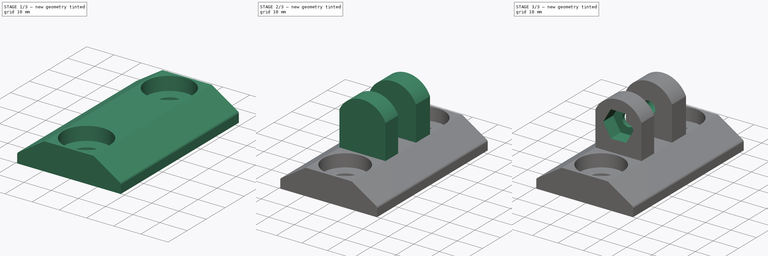
[diagram: build sequence overview — one tinted view per stage of 3, left to right]
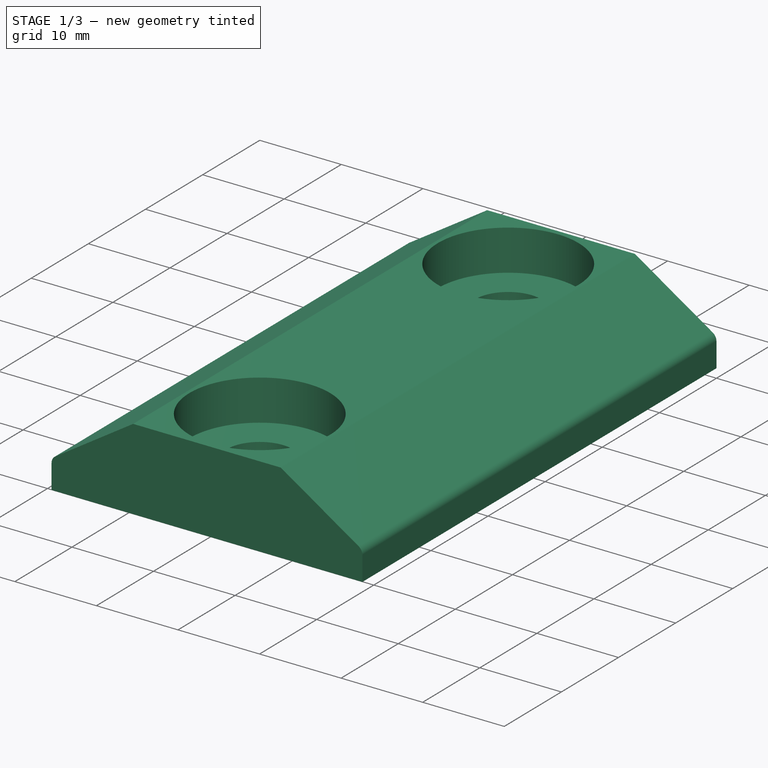
[diagram: stage 1 of 3 — iso view after this stage's code; geometry added in this stage tinted green]
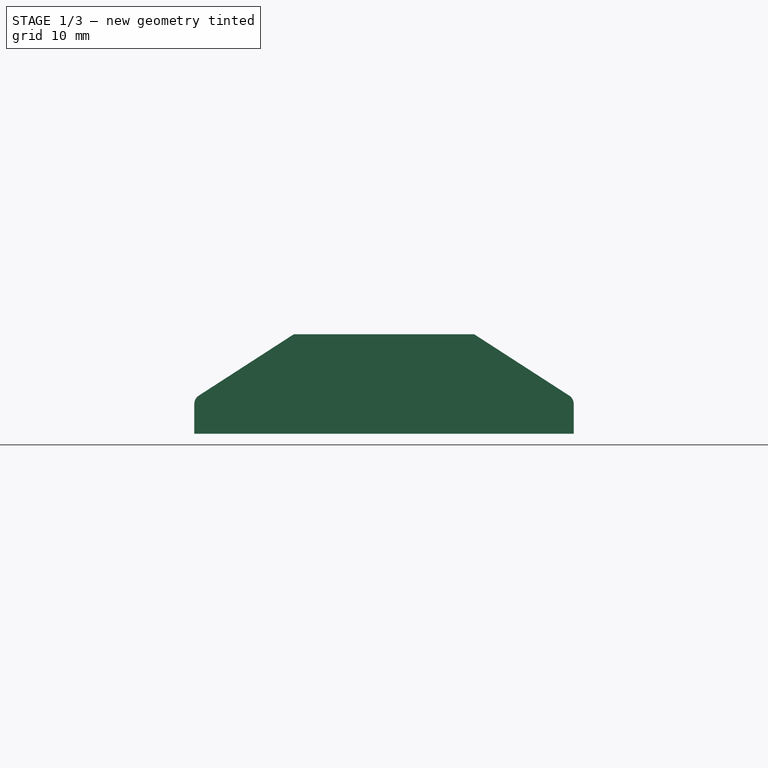
[diagram: stage 1 of 3 — front view after this stage's code; geometry added in this stage tinted green]
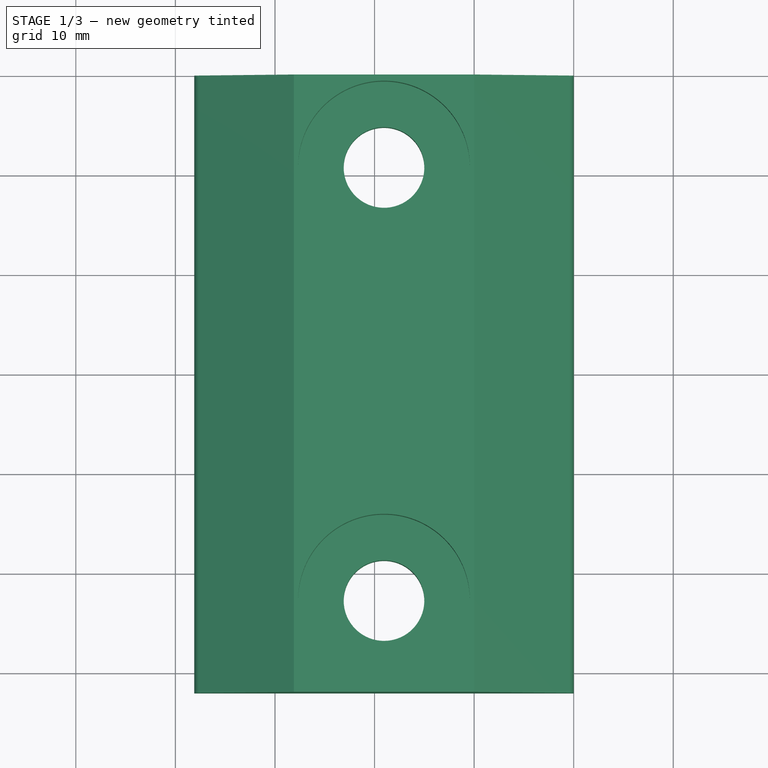
[diagram: stage 1 of 3 — top view after this stage's code; geometry added in this stage tinted green]
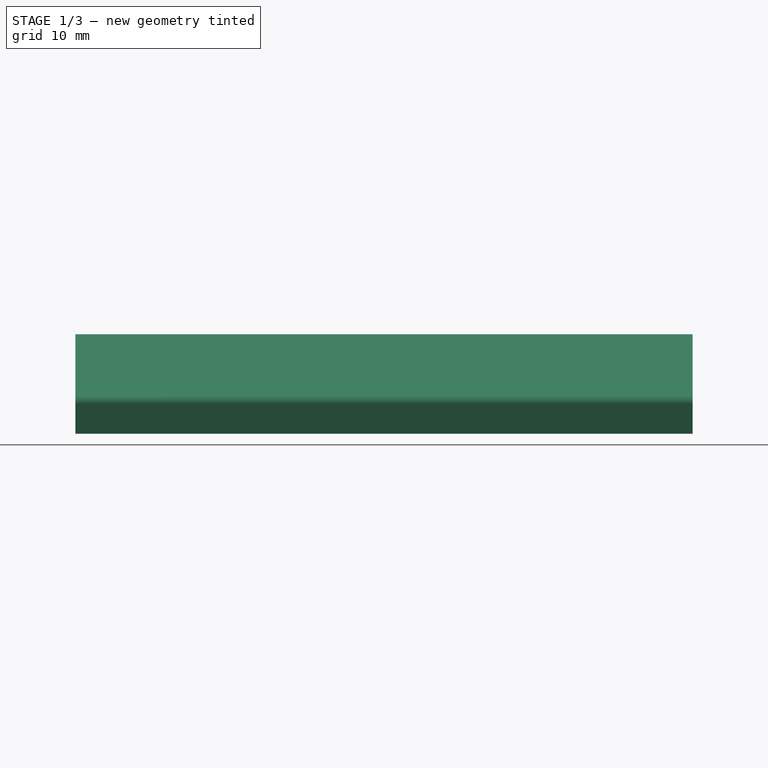
[diagram: stage 1 of 3 — right view after this stage's code; geometry added in this stage tinted green]
FCSTD DOCUMENT  (FreeCAD 0.18R)
Label: y-idler-mount
License: All rights reserved
LicenseURL: http://en.wikipedia.org/wiki/All_rights_reserved
objects: Sketcher::SketchObject×6, PartDesign::Pocket×4, PartDesign::Pad×2, PartDesign::SubtractiveBox×1, PartDesign::SubtractiveCylinder×1, PartDesign::Body×1
note: 23 computed .brp shape members not serialized (recipe doc carries the construction recipe); baked Part::Feature solids carry a one-line shape summary decoded from their .brp

FEATURE [Sketcher::SketchObject] Sketch002  label="Sketch"
  MapMode = 2
  Placement = pos=(0,0,0) rot=(1,0,0;1.5708rad)
  Support = -> [Sketch002]
  sketch-geometry (8):
    g0: LineSegment StartX=-38.1 StartY=3 StartZ=0 EndX=-38.1 EndY=0 EndZ=0
    g1: LineSegment StartX=-28.1 StartY=10 StartZ=0 EndX=-10 EndY=10 EndZ=0
    g2: LineSegment StartX=0 StartY=3 StartZ=0 EndX=0 EndY=0 EndZ=0
    g3: LineSegment StartX=-10 StartY=10 StartZ=0 EndX=-0.457656 EndY=3.84016 EndZ=0
    g4: ArcOfCircle CenterX=-1 CenterY=3 CenterZ=0 NormalX=0 NormalY=0 NormalZ=1 AngleXU=0 Radius=1 StartAngle=0 EndAngle=0.997572
    g5: LineSegment StartX=-38.1 StartY=0 StartZ=0 EndX=0 EndY=0 EndZ=0
    g6: LineSegment StartX=-28.1 StartY=10 StartZ=0 EndX=-37.6423 EndY=3.84016 EndZ=0
    g7: ArcOfCircle CenterX=-37.1 CenterY=3 CenterZ=0 NormalX=0 NormalY=0 NormalZ=1 AngleXU=0 Radius=1 StartAngle=2.14402 EndAngle=3.14159
  constraints (22):
    c: DistanceX(g0,g-1) = 38.1
    c: Vertical(g0)
    c: Horizontal(g1)
    c: DistanceY(g0,g1) = 10
    c: Vertical(g2)
    c: Tangent(g3,g4) = 1.5708
    c: Tangent(g2,g4) = 1.5708
    c: Horizontal(g5)
    c: Coincident(g5,g2)
    c: DistanceY(g2,g-1) = 0
    c: Coincident(g0,g5)
    c: DistanceX(g2,g-1) = 0
    c: Coincident(g3,g1)
    c: DistanceX(g1,g2) = 10
    c: DistanceY(g2,g2) = 3
    c: DistanceX(g4,g2) = 1
    c: Coincident(g6,g1)
    c: Tangent(g6,g7) = -1.5708
    c: Tangent(g0,g7) = -1.5708
    c: DistanceY(g4,g7) = 0
    c: DistanceY(g3,g6) = 0
    c: DistanceX(g0,g1) = 10
FEATURE [PartDesign::Pad] Pad
  Length = 62
  Length2 = 100
  Placement = pos=(0,0,0) rot=(1,0,0;1.5708rad)
  Profile = -> Sketch002
  Type = 0
FEATURE [Sketcher::SketchObject] Sketch003
  MapMode = 5
  Support = -> [XY_Plane002]
  sketch-geometry (2):
    g0: Circle CenterX=-19.05 CenterY=-9.25 CenterZ=0 NormalX=0 NormalY=0 NormalZ=1 AngleXU=0 Radius=4.05
    g1: Circle CenterX=-19.05 CenterY=-52.75 CenterZ=0 NormalX=0 NormalY=0 NormalZ=1 AngleXU=0 Radius=4.05
  constraints (6):
    c: Radius(g0) = 4.05
    c: DistanceX(g0,g-1) = 19.05
    c: DistanceY(g0,g-1) = 9.25
    c: Equal(g1,g0)
    c: DistanceX(g0,g1) = 0
    c: DistanceY(g1,g0) = 43.5
FEATURE [PartDesign::Pocket] Pocket
  BaseFeature = -> Pad
  Length = 10
  Length2 = 100
  Midplane = true
  Placement = pos=(0,0,0) rot=(1,0,0;1.5708rad)
  Profile = -> Sketch003
  Type = 1
FEATURE [Sketcher::SketchObject] Sketch  label="Sketch004"
  AttachmentOffset = pos=(0,0,5) rot=(0,0,1;0rad)
  MapMode = 5
  Placement = pos=(0,0,5) rot=(0,0,1;0rad)
  Support = -> [XY_Plane002]
  sketch-geometry (2):
    g0: Circle CenterX=-19.05 CenterY=-9.25 CenterZ=0 NormalX=0 NormalY=0 NormalZ=1 AngleXU=0 Radius=8.625
    g1: Circle CenterX=-19.05 CenterY=-52.75 CenterZ=0 NormalX=0 NormalY=0 NormalZ=1 AngleXU=0 Radius=8.625
  constraints (6):
    c: Radius(g0) = 8.625
    c: DistanceX(g0,g-1) = 19.05
    c: DistanceY(g0,g-1) = 9.25
    c: Equal(g1,g0)
    c: DistanceX(g1,g0) = 0
    c: DistanceY(g1,g0) = 43.5
FEATURE [PartDesign::Pocket] Pocket001
  BaseFeature = -> Pocket
  Length = 5
  Length2 = 5
  Offset = 5
  Placement = pos=(0,0,0) rot=(1,0,0;1.5708rad)
  Profile = -> Sketch
  Reversed = true
  Type = 0
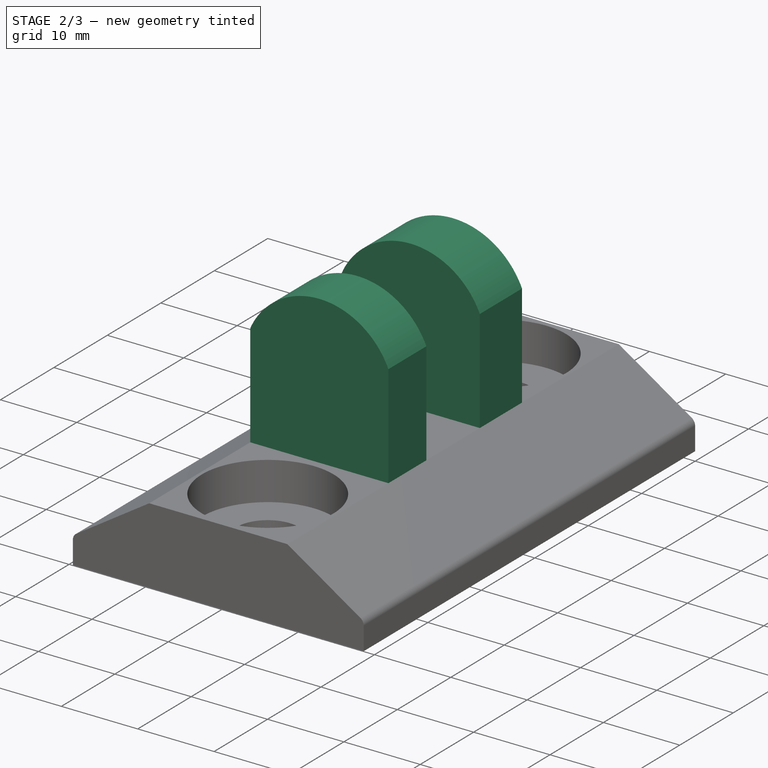
[diagram: stage 2 of 3 — iso view after this stage's code; geometry added in this stage tinted green]
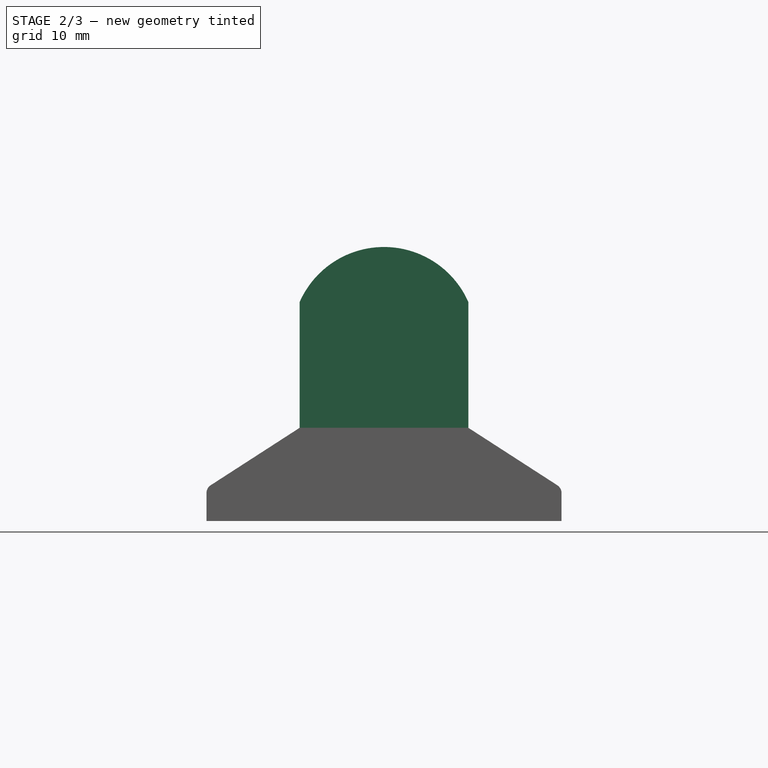
[diagram: stage 2 of 3 — front view after this stage's code; geometry added in this stage tinted green]
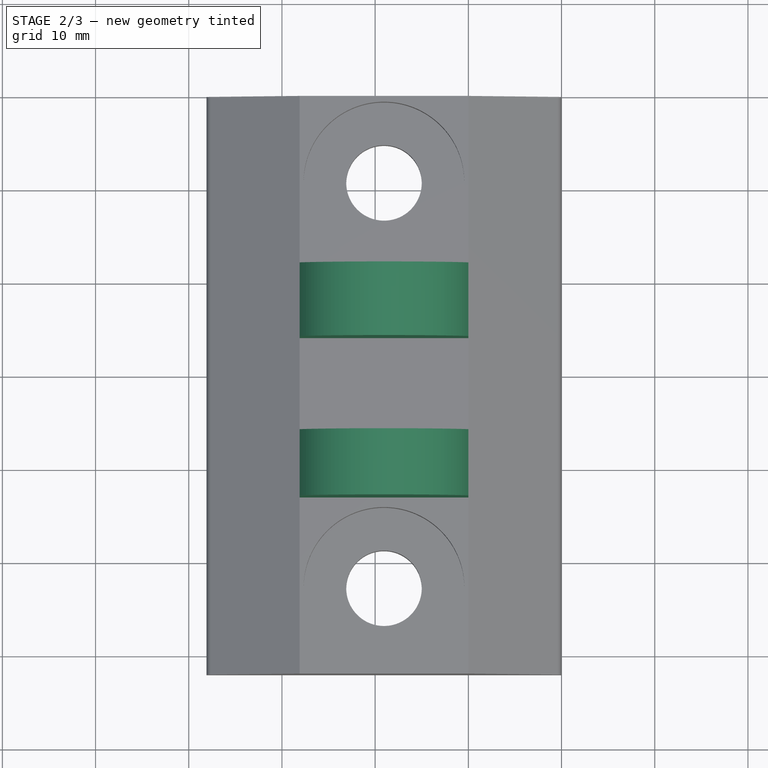
[diagram: stage 2 of 3 — top view after this stage's code; geometry added in this stage tinted green]
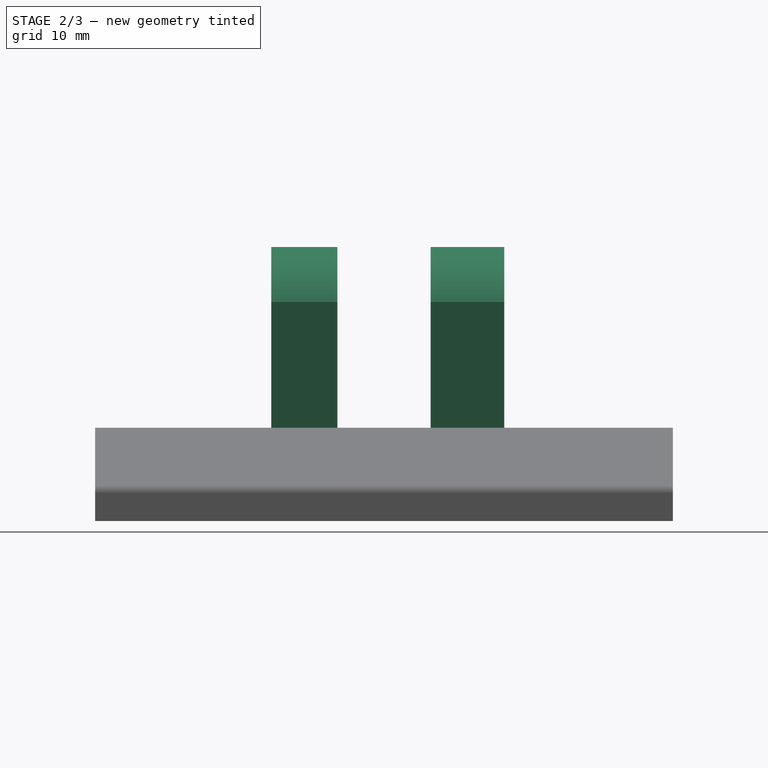
[diagram: stage 2 of 3 — right view after this stage's code; geometry added in this stage tinted green]
FEATURE [Sketcher::SketchObject] Sketch004  label="Sketch005"
  AttachmentOffset = pos=(0,0,18.1) rot=(0,0,1;0rad)
  MapMode = 5
  Placement = pos=(0,-18.1,-4e-15) rot=(1,0,0;1.5708rad)
  Support = -> [XZ_Plane002]
  sketch-geometry (4):
    g0: LineSegment StartX=-28.1 StartY=10 StartZ=0 EndX=-10 EndY=10 EndZ=0
    g1: LineSegment StartX=-28.1 StartY=10 StartZ=0 EndX=-28.1 EndY=23.5 EndZ=0
    g2: LineSegment StartX=-10 StartY=23.5 StartZ=0 EndX=-10 EndY=10 EndZ=0
    g3: ArcOfCircle CenterX=-19.05 CenterY=19.5137 CenterZ=0 NormalX=0 NormalY=0 NormalZ=1 AngleXU=0 Radius=9.88902 StartAngle=0.414901 EndAngle=2.72669
  constraints (12):
    c: DistanceX(g0,g-1) = 10
    c: Horizontal(g0)
    c: DistanceX(g0,g0) = 18.1
    c: DistanceY(g-1,g0) = 10
    c: Coincident(g1,g0)
    c: Vertical(g1)
    c: Coincident(g2,g0)
    c: DistanceY(g1,g2) = 0
    c: Vertical(g2)
    c: DistanceY(g-1,g2) = 23.5
    c: Coincident(g3,g1)
    c: Coincident(g3,g2)
FEATURE [PartDesign::Pad] Pad001
  BaseFeature = -> Pocket001
  Length = 25
  Length2 = 100
  Placement = pos=(0,0,0) rot=(1,0,0;1.5708rad)
  Profile = -> Sketch004
  Type = 0
FEATURE [PartDesign::SubtractiveBox] Box
  AttacherType = Attacher::AttachEngine3D
  AttachmentOffset = pos=(-29,10,26) rot=(0,0,1;0rad)
  BaseFeature = -> Pad001
  Height = 10
  Length = 20
  MapMode = 5
  Placement = pos=(-29,-26,10) rot=(1,0,0;1.5708rad)
  Support = -> [XZ_Plane002]
  Width = 20
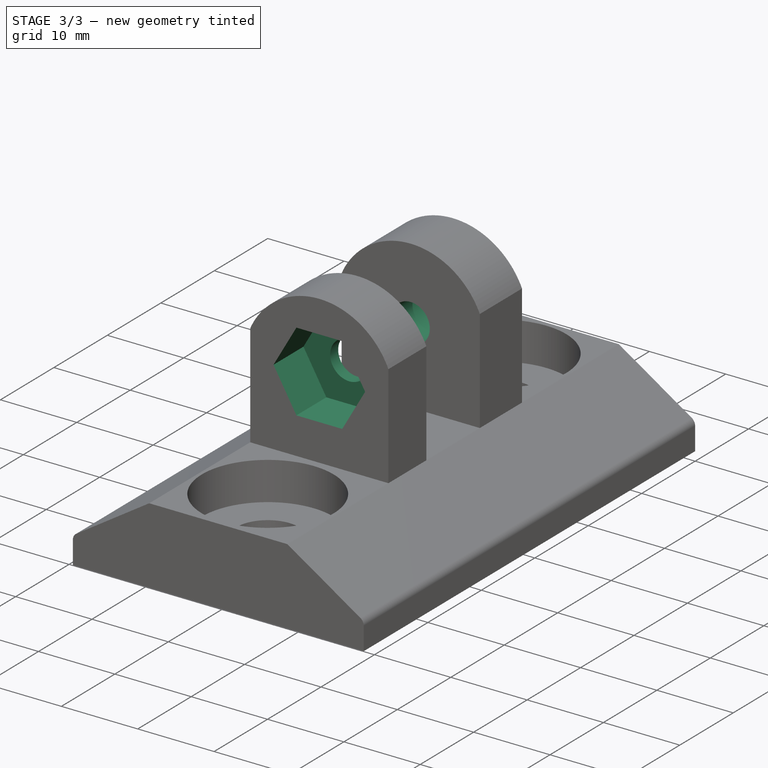
[diagram: stage 3 of 3 — iso view after this stage's code; geometry added in this stage tinted green]
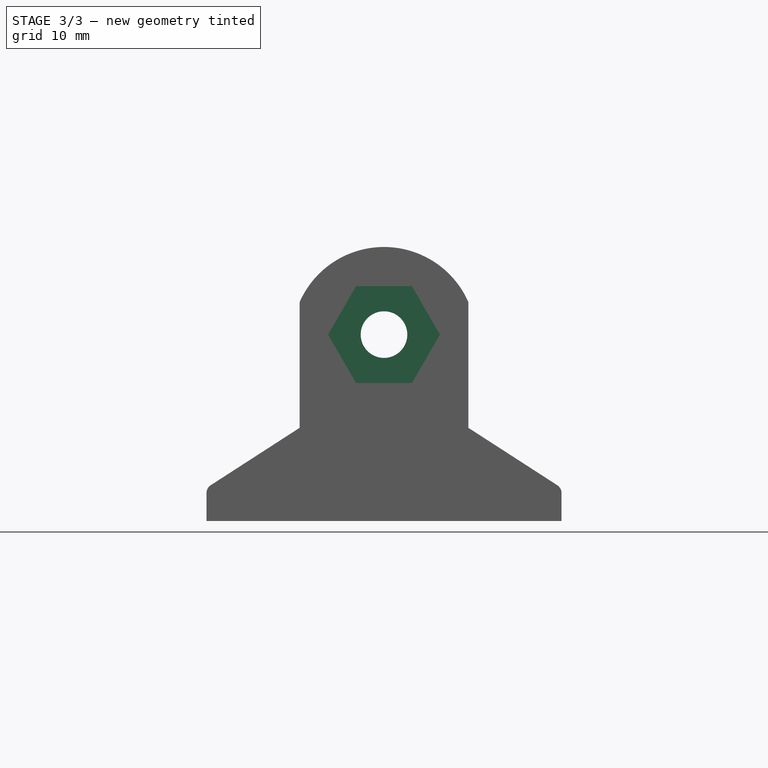
[diagram: stage 3 of 3 — front view after this stage's code; geometry added in this stage tinted green]
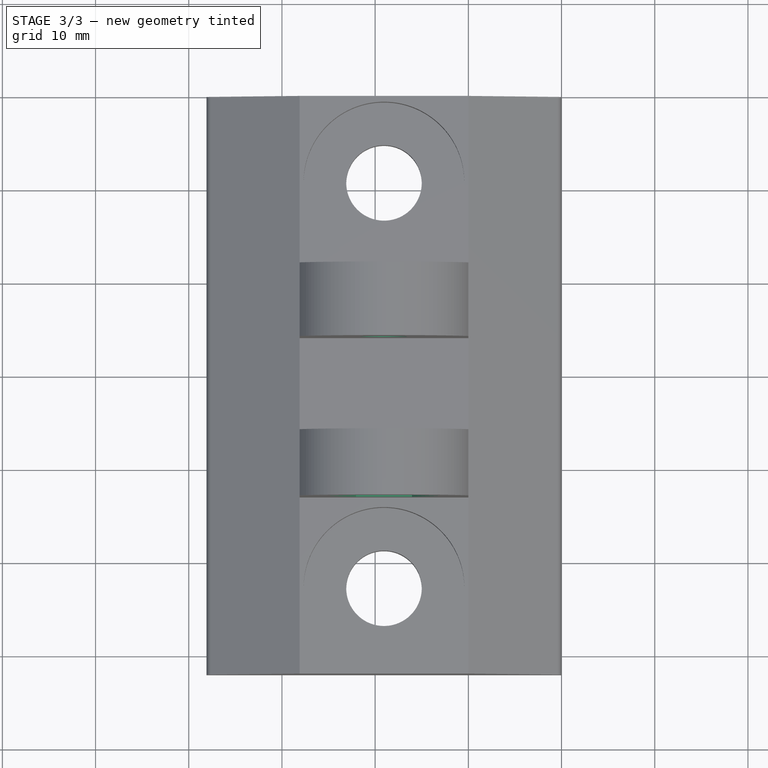
[diagram: stage 3 of 3 — top view after this stage's code; geometry added in this stage tinted green]
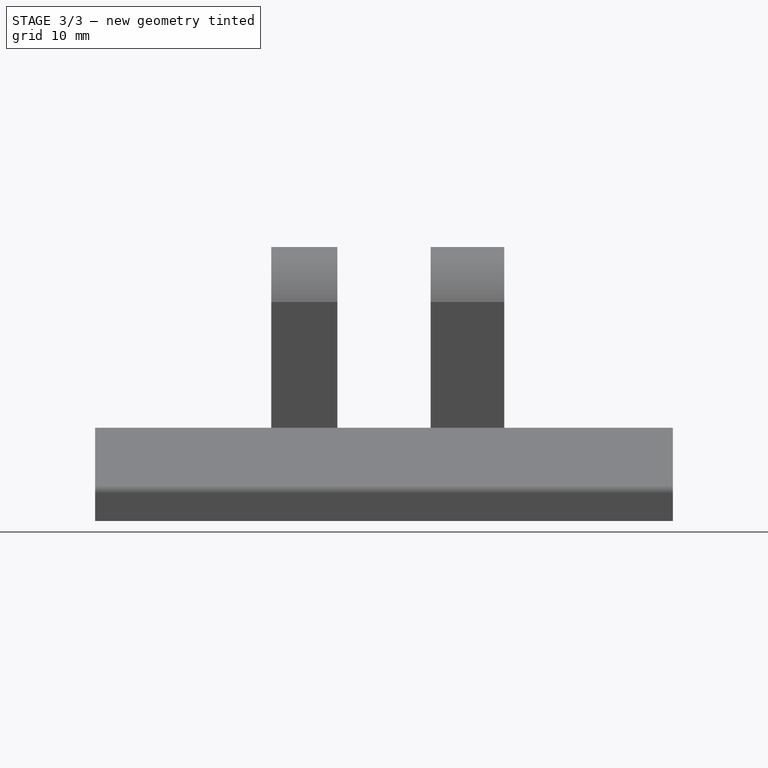
[diagram: stage 3 of 3 — right view after this stage's code; geometry added in this stage tinted green]
FEATURE [Sketcher::SketchObject] Sketch005  label="Sketch006"
  MapMode = 5
  Placement = pos=(0,0,0) rot=(1,0,0;1.5708rad)
  Support = -> [XZ_Plane002]
  sketch-geometry (1):
    g0: Circle CenterX=-19.05 CenterY=20 CenterZ=0 NormalX=0 NormalY=0 NormalZ=1 AngleXU=0 Radius=2.5
  constraints (3):
    c: Diameter(g0) = 5
    c: DistanceX(g0,g-1) = 19.05
    c: DistanceY(g-1,g0) = 20
FEATURE [PartDesign::Pocket] Pocket002
  BaseFeature = -> Box
  Length = 5
  Length2 = 100
  Placement = pos=(-29,-26,10) rot=(1,0,0;1.5708rad)
  Profile = -> Sketch005
  Reversed = true
  Type = 1
FEATURE [PartDesign::SubtractiveCylinder] Cylinder
  Angle = 360
  AttacherType = Attacher::AttachEngine3D
  AttachmentOffset = pos=(0,0,-4) rot=(0,0,1;0rad)
  BaseFeature = -> Pocket002
  Height = 4
  MapMode = 11
  Placement = pos=(-19.05,-22.1,20) rot=(0.57735,-0.57735,-0.57735;4.18879rad)
  Radius = 4
  Support = -> [Pocket002]
FEATURE [Sketcher::SketchObject] Sketch006  label="Sketch007"
  AttachmentOffset = pos=(0,0,37.5) rot=(0,0,1;0rad)
  MapMode = 5
  Placement = pos=(0,-37.5,-8.3e-15) rot=(1,0,0;1.5708rad)
  Support = -> [XZ_Plane002]
  sketch-geometry (6):
    g0: LineSegment StartX=-16.05 StartY=25.1962 StartZ=0 EndX=-22.05 EndY=25.1962 EndZ=0
    g1: LineSegment StartX=-22.05 StartY=25.1962 StartZ=0 EndX=-25.05 EndY=20 EndZ=0
    g2: LineSegment StartX=-25.05 StartY=20 StartZ=0 EndX=-22.05 EndY=14.8038 EndZ=0
    g3: LineSegment StartX=-22.05 StartY=14.8038 StartZ=0 EndX=-16.05 EndY=14.8038 EndZ=0
    g4: LineSegment StartX=-16.05 StartY=25.1962 StartZ=0 EndX=-13.05 EndY=20 EndZ=0
    g5: LineSegment StartX=-13.05 StartY=20 StartZ=0 EndX=-16.05 EndY=14.8038 EndZ=0
  constraints (18):
    c: Coincident(g0,g1)
    c: Coincident(g1,g2)
    c: Coincident(g2,g3)
    c: Coincident(g0,g4)
    c: Coincident(g4,g5)
    c: Equal(g0,g4)
    c: Equal(g4,g5)
    c: Equal(g4,g1)
    c: Equal(g4,g3)
    c: Coincident(g3,g5)
    c: Horizontal(g0)
    c: Horizontal(g3)
    c: DistanceY(g4,g1) = 0
    c: Angle(g0,g4) = 2.0944
    c: DistanceX(g0,g2) = 0
    c: DistanceX(g0,g0) = 6
    c: DistanceX(g4,g-1) = 13.05
    c: DistanceY(g-1,g4) = 20
FEATURE [PartDesign::Pocket] Pocket003
  BaseFeature = -> Cylinder
  Length = 6
  Length2 = 100
  Placement = pos=(-19.05,-22.1,20) rot=(0.57735,-0.57735,-0.57735;4.18879rad)
  Profile = -> Sketch006
  Reversed = true
  Type = 0
FEATURE [PartDesign::Body] Body002  label="y-idler-mount"
  Group = -> [Sketch002,Pad,Sketch003,Pocket,Sketch,Pocket001,Sketch004,Pad001,Box,Sketch005,Pocket002,Cylinder,Sketch006,Pocket003]
  Origin = -> Origin002
  Tip = -> Pocket003
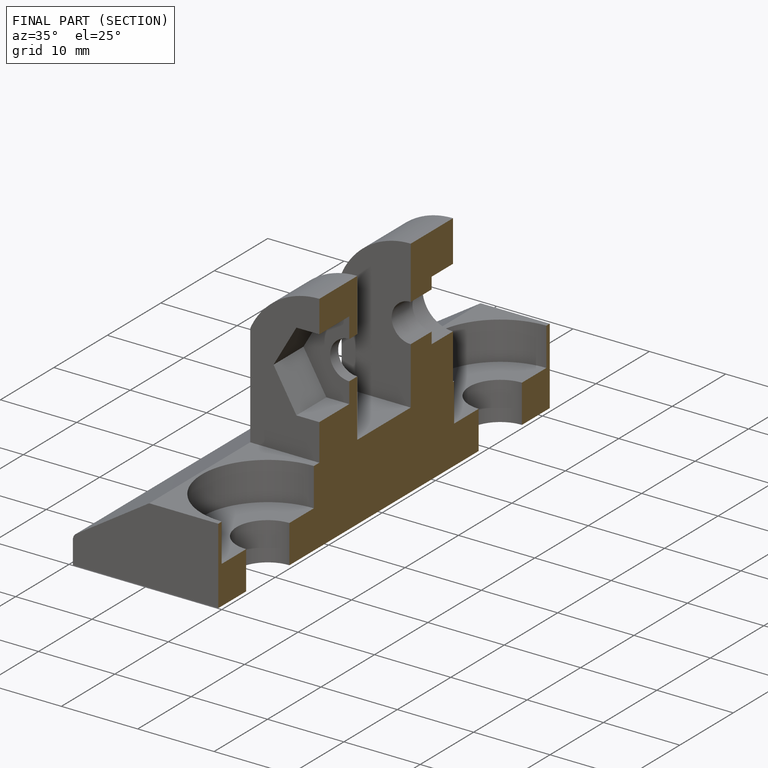
[diagram: finished part — half-section view (interior)]
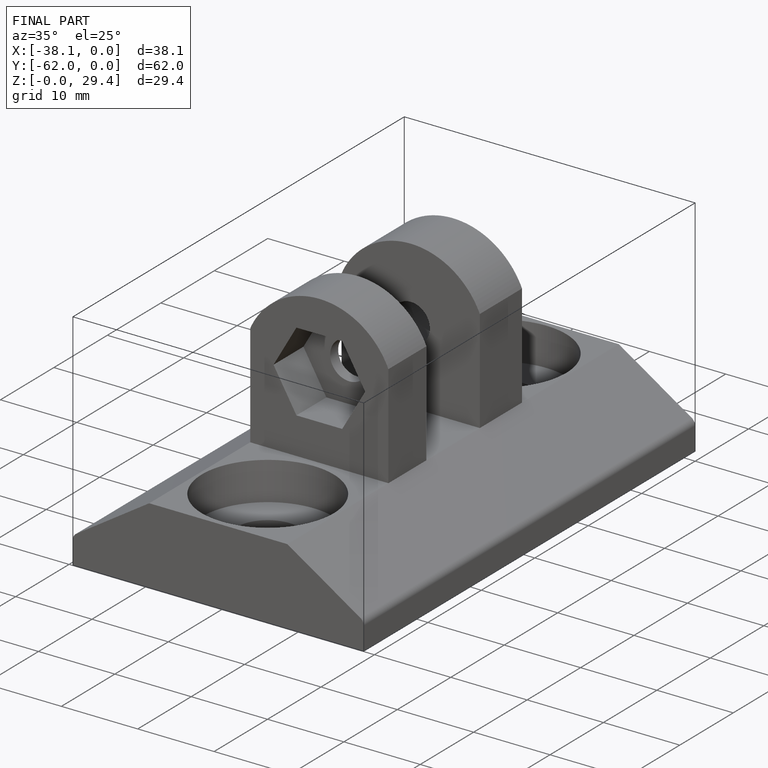
[diagram: finished part — iso view with bounding-box wireframe]
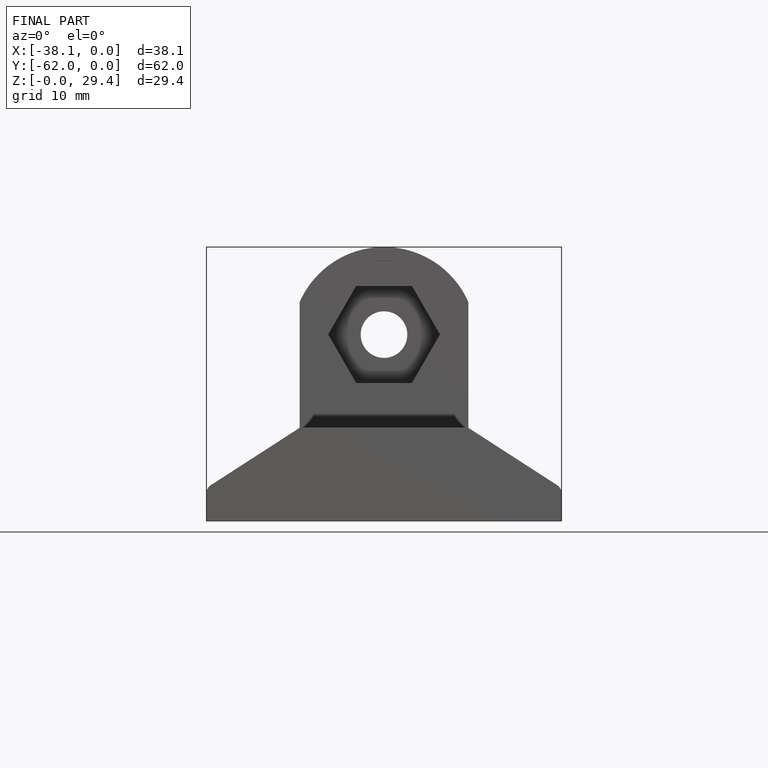
[diagram: finished part — front view with bounding-box wireframe]
